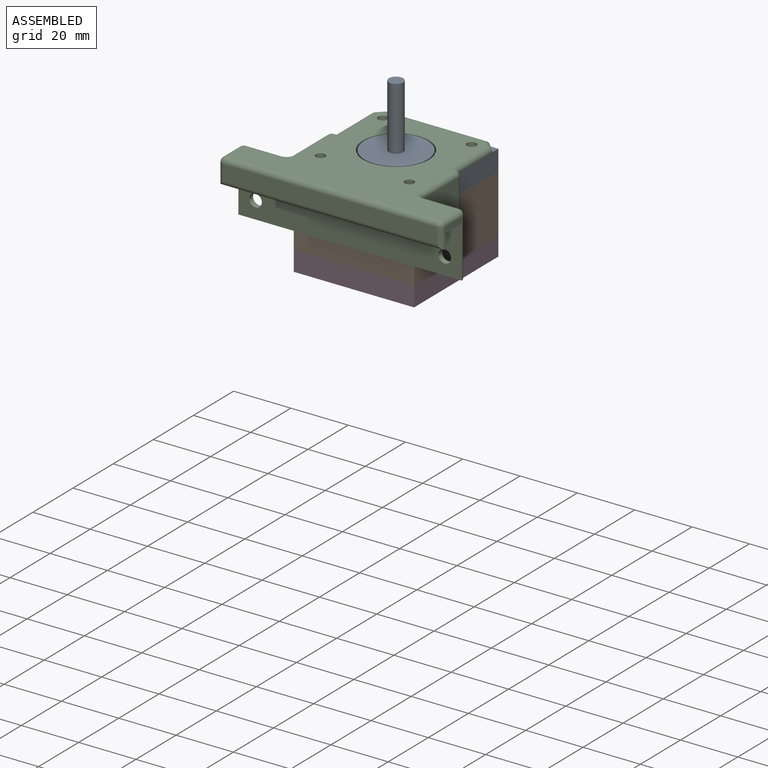
[diagram: assembled view]
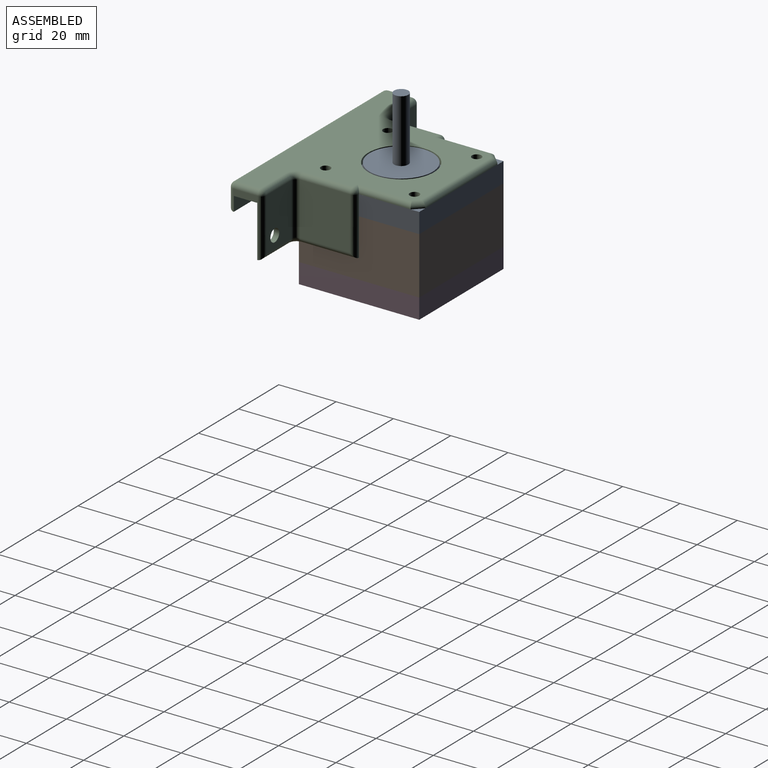
[diagram: assembled view, second angle]
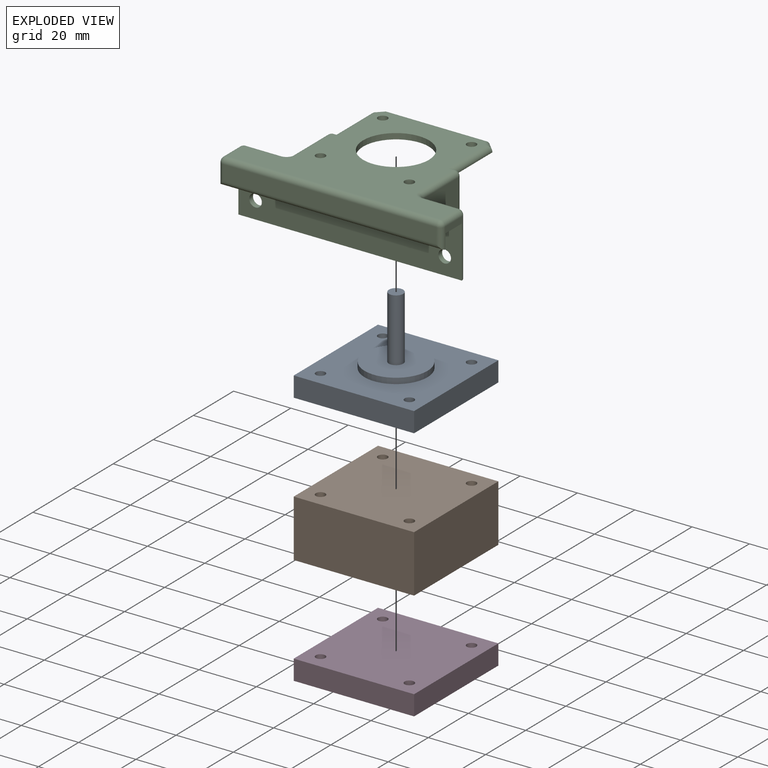
[diagram: exploded view]
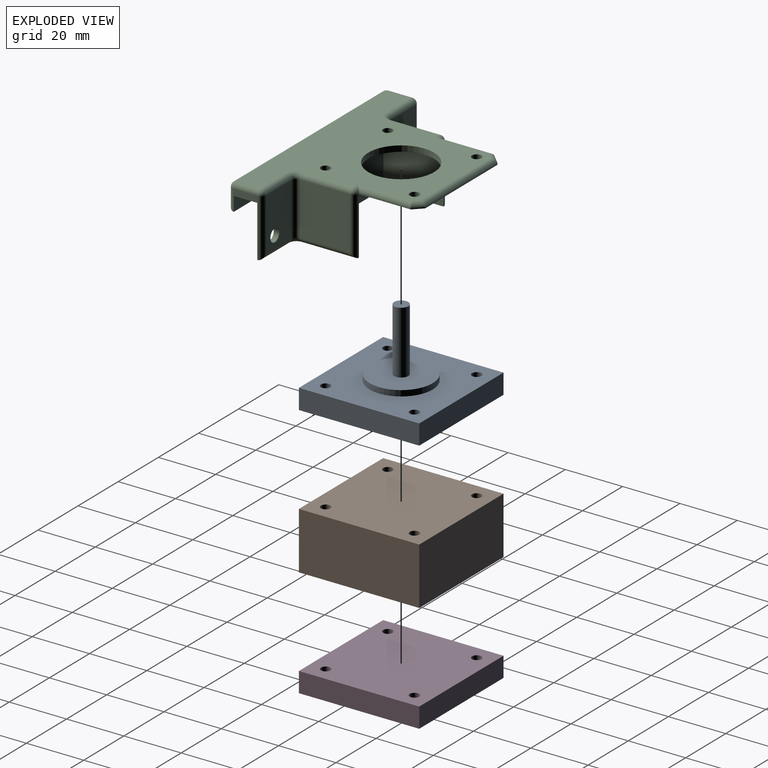
[diagram: exploded view, second angle]
ASSEMBLY  parts=4 mates=3
PART A: 14 faces, bbox 42x42x31 mm
  f0: plane 42x7mm, normal (0,-1,0), area 294mm2, adj f1,f3,f4,f5
  f1: plane 42x7mm, normal (1,0,0), area 294mm2, adj f0,f2,f4,f5
  f2: plane 42x7mm, normal (0,1,0), area 294mm2, adj f1,f3,f4,f5
  f3: plane 42x7mm, normal (-1,0,0), area 294mm2, adj f0,f2,f4,f5
  f4: plane 42x42mm, normal (0,0,1), area 1349.7mm2, adj f0,f1,f2,f3,f6,f7,f8,f9
  f5: plane 42x42mm, normal (0,0,-1), area 1729.8mm2, adj f0,f1,f2,f3,f6,f7,f8,f9
  f6: cylinder r=1.65mm len=7mm, axis (0,0,1), area 72.6mm2, adj f4,f5
  f7: cylinder r=1.65mm len=7mm, axis (0,0,1), area 72.6mm2, adj f4,f5
  f8: cylinder r=1.65mm len=7mm, axis (0,0,1), area 72.6mm2, adj f4,f5
  f9: cylinder r=1.65mm len=7mm, axis (0,0,1), area 72.6mm2, adj f4,f5
  f10: cylinder r=11mm len=22mm, axis (0,0,-1), area 138.2mm2, adj f4,f11
  f11: plane 22x22mm, normal (0,0,1), area 360.5mm2, adj f10,f12
  f12: cylinder r=2.5mm len=22mm, axis (0,0,-1), area 345.6mm2, adj f11,f13
  f13: plane 5x5mm, normal (0,0,1), area 19.6mm2, adj f12
PART B: 10 faces, bbox 42x42x20 mm
  f0: plane 42x20mm, normal (0,-1,0), area 840mm2, adj f1,f3,f4,f5
  f1: plane 42x20mm, normal (1,0,0), area 840mm2, adj f0,f2,f4,f5
  f2: plane 42x20mm, normal (0,1,0), area 840mm2, adj f1,f3,f4,f5
  f3: plane 42x20mm, normal (-1,0,0), area 840mm2, adj f0,f2,f4,f5
  f4: plane 42x42mm, normal (0,0,1), area 1729.8mm2, adj f0,f1,f2,f3,f6,f7,f8,f9
  f5: plane 42x42mm, normal (0,0,-1), area 1729.8mm2, adj f0,f1,f2,f3,f6,f7,f8,f9
  f6: cylinder r=1.65mm len=20mm, axis (0,0,1), area 207.3mm2, adj f4,f5
  f7: cylinder r=1.65mm len=20mm, axis (0,0,1), area 207.3mm2, adj f4,f5
  f8: cylinder r=1.65mm len=20mm, axis (0,0,1), area 207.3mm2, adj f4,f5
  f9: cylinder r=1.65mm len=20mm, axis (0,0,1), area 207.3mm2, adj f4,f5
PART C: 68 faces, bbox 78x54x22 mm
  f0: plane 78x8.2mm, normal (0,0,1), area 639.6mm2, adj f3,f14,f16,f41
  f1: plane 42.2x42mm, normal (0,0,1), area 1309.5mm2, adj f6,f7,f8,f9,f10,f12,f13,f18
  f2: plane 74.4x5.4mm, normal (0,-1,0), area 401.8mm2, adj f37,f39,f40,f67
  f3: plane 20.2x8.4mm, normal (1,0,0), area 20.8mm2, adj f0,f14,f15,f16,f17,f33,f36,f39
  f4: plane 18.4x12.4mm, normal (0,1,0), area 213mm2, adj f20,f29,f31,f33,f34
  f5: plane 18.4x17.4mm, normal (1,0,0), area 320.2mm2, adj f24,f26,f29,f30
  f6: plane 20.2x0.2mm, normal (0,1,0), area 2mm2, adj f1,f7,f12,f15,f24,f25
  f7: plane 18x0.2mm, normal (1,0,0), area 3.6mm2, adj f1,f6,f8,f23
  f8: plane 3x3mm, normal (0.71,0.71,0), area 0.8mm2, adj f1,f7,f9,f22
  f9: plane 36x0.2mm, normal (0,1,0), area 7.2mm2, adj f1,f8,f21,f46
  f10: cylinder r=11.5mm len=23mm, axis (0,0,-1), area 144.5mm2, adj f1,f11
  f11: plane 74.4x50.4mm, normal (0,0,-1), area 1873.8mm2, adj f10,f18,f19,f21,f22,f23,f25,f30
  f12: plane 21x20mm, normal (-1,0,0), area 420mm2, adj f1,f6,f13,f15
  f13: plane 42.2x20mm, normal (0,1,0), area 844mm2, adj f1,f12,f15,f47
  f14: plane 78x18mm, normal (0,-1,0), area 1373.6mm2, adj f0,f3,f15,f20,f41,f50
  f15: plane 78x22.9mm, normal (0,0,1), area 93.9mm2, adj f3,f6,f12,f13,f14,f26,f28,f31
  f16: plane 78x5mm, normal (0,1,0), area 390mm2, adj f0,f3,f17,f41
  f17: plane 78x0.1mm, normal (0,0,1), area 7.8mm2, adj f3,f16,f40,f41
  f18: cylinder r=1.65mm len=3.3mm, axis (0,0,-1), area 20.7mm2, adj f1,f11
  f19: cylinder r=1.65mm len=3.3mm, axis (0,0,-1), area 20.7mm2, adj f1,f11
  f20: cylinder r=2.2mm len=4.4mm, axis (0,-1,0), area 26.3mm2, adj f4,f14
  f21: cylinder r=1.8mm len=36mm, axis (-1,0,0), area 100.3mm2, adj f9,f11,f22,f51
  f22: cylinder r=1.8mm len=4.27mm, axis (-0.71,0.71,0), area 10.5mm2, adj f8,f11,f21,f23
  f23: cylinder r=1.8mm len=19.8mm, axis (0,1,0), area 52mm2, adj f7,f11,f22,f25
  f24: cylinder r=1.8mm len=20.2mm, axis (0,0,1), area 55.3mm2, adj f5,f6,f26,f27
  f25: cylinder r=1.8mm len=2mm, axis (-1,0,0), area 2.4mm2, adj f6,f11,f23,f27
  f26: cylinder r=1.8mm len=19.2mm, axis (0,-1,0), area 52.4mm2, adj f5,f15,f24,f28
  f27: sphere r=1.8mm, area 5.1mm2, adj f24,f25,f30
  f28: torus R=3.6mm, axis (0,0,1), area 10.9mm2, adj f15,f26,f29,f31
  f29: cylinder r=1.8mm len=18.4mm, axis (0,0,1), area 52mm2, adj f4,f5,f28,f32
  f30: cylinder r=1.8mm len=17.4mm, axis (0,1,0), area 49.2mm2, adj f5,f11,f27,f32
  f31: cylinder r=1.8mm len=14.2mm, axis (1,0,0), area 38.3mm2, adj f4,f15,f28,f33
  f32: torus R=3.6mm, axis (0,0,1), area 10.9mm2, adj f11,f29,f30,f34
  f33: cylinder r=1.8mm len=20.2mm, axis (0,0,-1), area 55.3mm2, adj f3,f4,f31,f35
  f34: cylinder r=1.8mm len=12.4mm, axis (-1,0,0), area 35.1mm2, adj f4,f11,f32,f35
  f35: sphere r=1.8mm, area 5.1mm2, adj f33,f34,f36
  f36: cylinder r=1.8mm len=8.4mm, axis (0,1,0), area 23.8mm2, adj f3,f11,f35,f38
  f37: cylinder r=1.8mm len=74.4mm, axis (1,0,0), area 210.4mm2, adj f2,f11,f38,f66
  f38: sphere r=1.8mm, area 5.1mm2, adj f36,f37,f39
  f39: cylinder r=1.8mm len=7.2mm, axis (0,0,-1), area 18.5mm2, adj f2,f3,f38,f40
  f40: cylinder r=1.8mm len=78mm, axis (-1,0,0), area 216.8mm2, adj f2,f17,f39,f67
  f41: plane 20.2x8.4mm, normal (-1,0,0), area 20.8mm2, adj f0,f14,f15,f16,f17,f62,f65,f67
  f42: plane 18.4x12.4mm, normal (0,1,0), area 213mm2, adj f50,f58,f60,f62,f63
  f43: plane 18.4x17.4mm, normal (-1,0,0), area 320.2mm2, adj f53,f55,f58,f59
  f44: plane 20.2x0.2mm, normal (0,1,0), area 2mm2, adj f1,f15,f45,f47,f53,f54
  f45: plane 18x0.2mm, normal (-1,0,0), area 3.6mm2, adj f1,f44,f46,f52
  f46: plane 3x3mm, normal (-0.71,0.71,0), area 0.8mm2, adj f1,f9,f45,f51
  f47: plane 21x20mm, normal (1,0,0), area 420mm2, adj f1,f13,f15,f44
  f48: cylinder r=1.65mm len=3.3mm, axis (0,0,-1), area 20.7mm2, adj f1,f11
  f49: cylinder r=1.65mm len=3.3mm, axis (0,0,-1), area 20.7mm2, adj f1,f11
  f50: cylinder r=2.2mm len=4.4mm, axis (0,-1,0), area 26.3mm2, adj f14,f42
  f51: cylinder r=1.8mm len=4.27mm, axis (0.71,0.71,0), area 10.5mm2, adj f11,f21,f46,f52
  f52: cylinder r=1.8mm len=19.8mm, axis (0,1,0), area 52mm2, adj f11,f45,f51,f54
  f53: cylinder r=1.8mm len=20.2mm, axis (0,0,1), area 55.3mm2, adj f43,f44,f55,f56
  f54: cylinder r=1.8mm len=2mm, axis (1,0,0), area 2.4mm2, adj f11,f44,f52,f56
  f55: cylinder r=1.8mm len=19.2mm, axis (0,-1,0), area 52.4mm2, adj f15,f43,f53,f57
  f56: sphere r=1.8mm, area 5.1mm2, adj f53,f54,f59
  f57: torus R=3.6mm, axis (0,0,1), area 10.9mm2, adj f15,f55,f58,f60
  f58: cylinder r=1.8mm len=18.4mm, axis (0,0,1), area 52mm2, adj f42,f43,f57,f61
  f59: cylinder r=1.8mm len=17.4mm, axis (0,1,0), area 49.2mm2, adj f11,f43,f56,f61
  f60: cylinder r=1.8mm len=14.2mm, axis (-1,0,0), area 38.3mm2, adj f15,f42,f57,f62
  f61: torus R=3.6mm, axis (0,0,1), area 10.9mm2, adj f11,f58,f59,f63
  f62: cylinder r=1.8mm len=20.2mm, axis (0,0,-1), area 55.3mm2, adj f41,f42,f60,f64
  f63: cylinder r=1.8mm len=12.4mm, axis (1,0,0), area 35.1mm2, adj f11,f42,f61,f64
  f64: sphere r=1.8mm, area 5.1mm2, adj f62,f63,f65
  f65: cylinder r=1.8mm len=8.4mm, axis (0,1,0), area 23.8mm2, adj f11,f41,f64,f66
  f66: sphere r=1.8mm, area 5.1mm2, adj f37,f65,f67
  f67: cylinder r=1.8mm len=7.2mm, axis (0,0,-1), area 18.5mm2, adj f2,f40,f41,f66
PART D: 10 faces, bbox 42x42x7 mm
  f0: plane 42x7mm, normal (0,-1,0), area 294mm2, adj f1,f3,f4,f5
  f1: plane 42x7mm, normal (1,0,0), area 294mm2, adj f0,f2,f4,f5
  f2: plane 42x7mm, normal (0,1,0), area 294mm2, adj f1,f3,f4,f5
  f3: plane 42x7mm, normal (-1,0,0), area 294mm2, adj f0,f2,f4,f5
  f4: plane 42x42mm, normal (0,0,1), area 1729.8mm2, adj f0,f1,f2,f3,f6,f7,f8,f9
  f5: plane 42x42mm, normal (0,0,-1), area 1729.8mm2, adj f0,f1,f2,f3,f6,f7,f8,f9
  f6: cylinder r=1.65mm len=7mm, axis (0,0,1), area 72.6mm2, adj f4,f5
  f7: cylinder r=1.65mm len=7mm, axis (0,0,1), area 72.6mm2, adj f4,f5
  f8: cylinder r=1.65mm len=7mm, axis (0,0,1), area 72.6mm2, adj f4,f5
  f9: cylinder r=1.65mm len=7mm, axis (0,0,1), area 72.6mm2, adj f4,f5
PLACE A t=(-10.47,27.45,21.24)mm
PLACE B t=(-10.47,27.45,21.24)mm
PLACE C rot(axis=(0,1,0),180deg) t=(-10.47,-5.55,57.24)mm
PLACE D t=(-10.47,27.45,21.24)mm
MATE fastened B.f9 <-> A.f9  axis (0,0,1) through (5.03,11.95,48.24)mm
MATE fastened D.f9 <-> B.f9  axis (0,0,1) through (5.03,11.95,28.24)mm
MATE fastened A.f7 <-> C.f49  axis (0,0,1) through (5.03,42.95,55.24)mm
